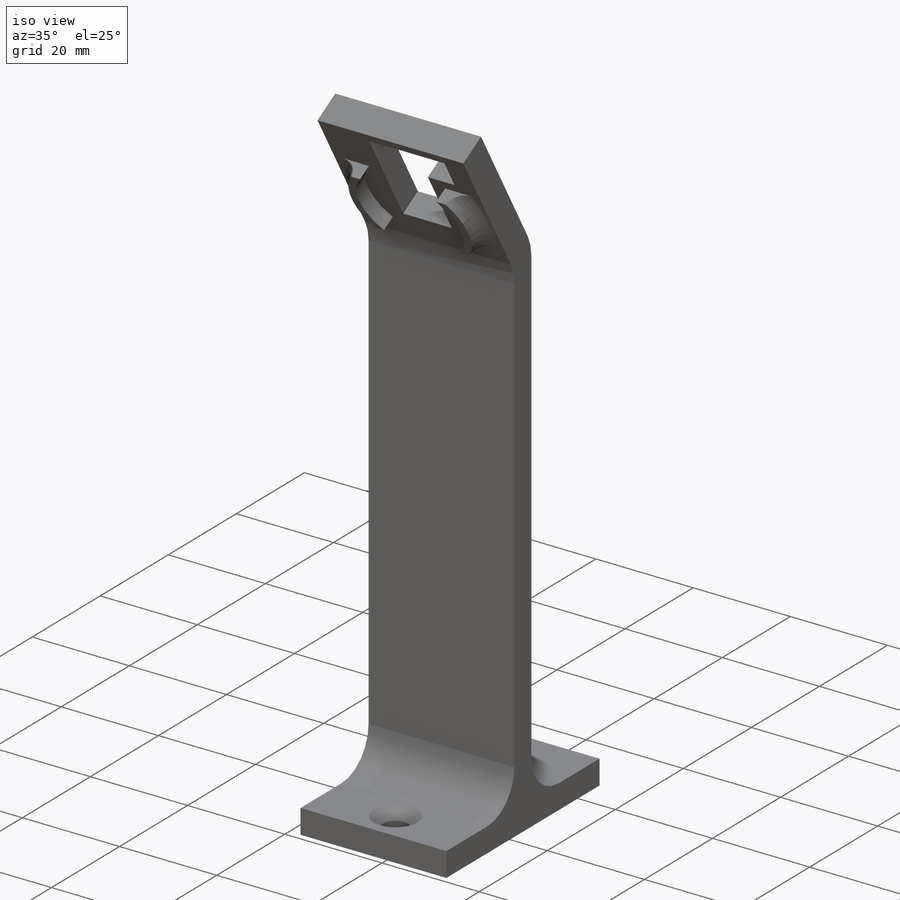
[diagram: iso view]
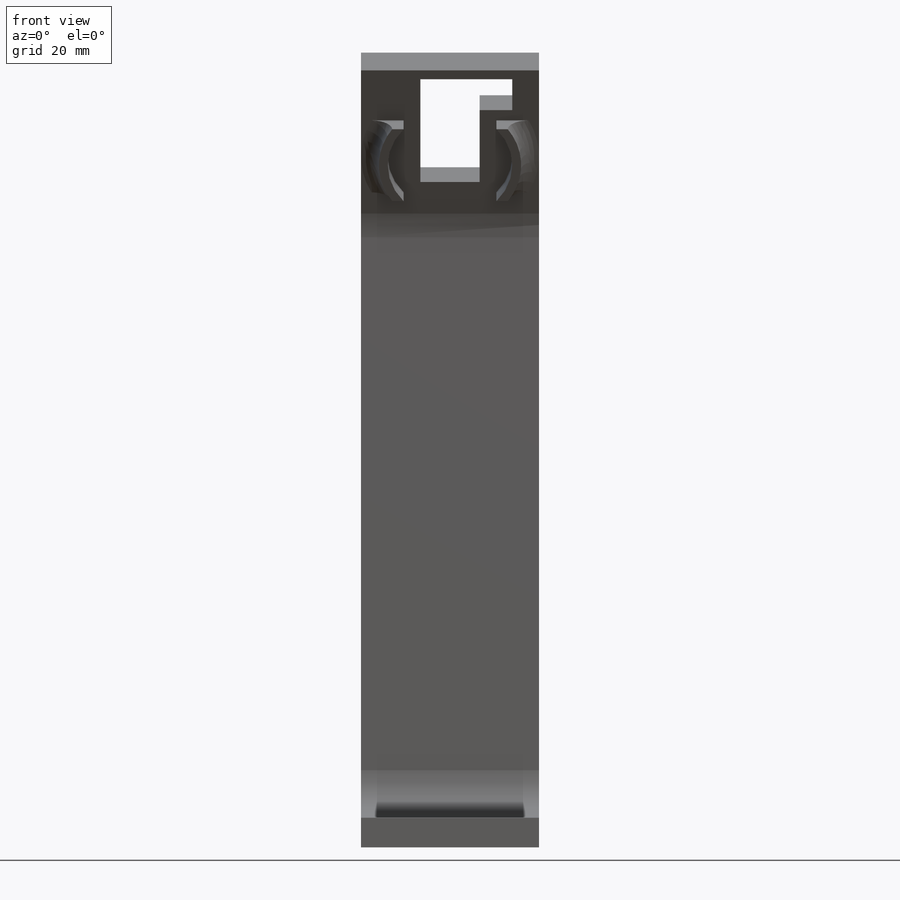
[diagram: front view]
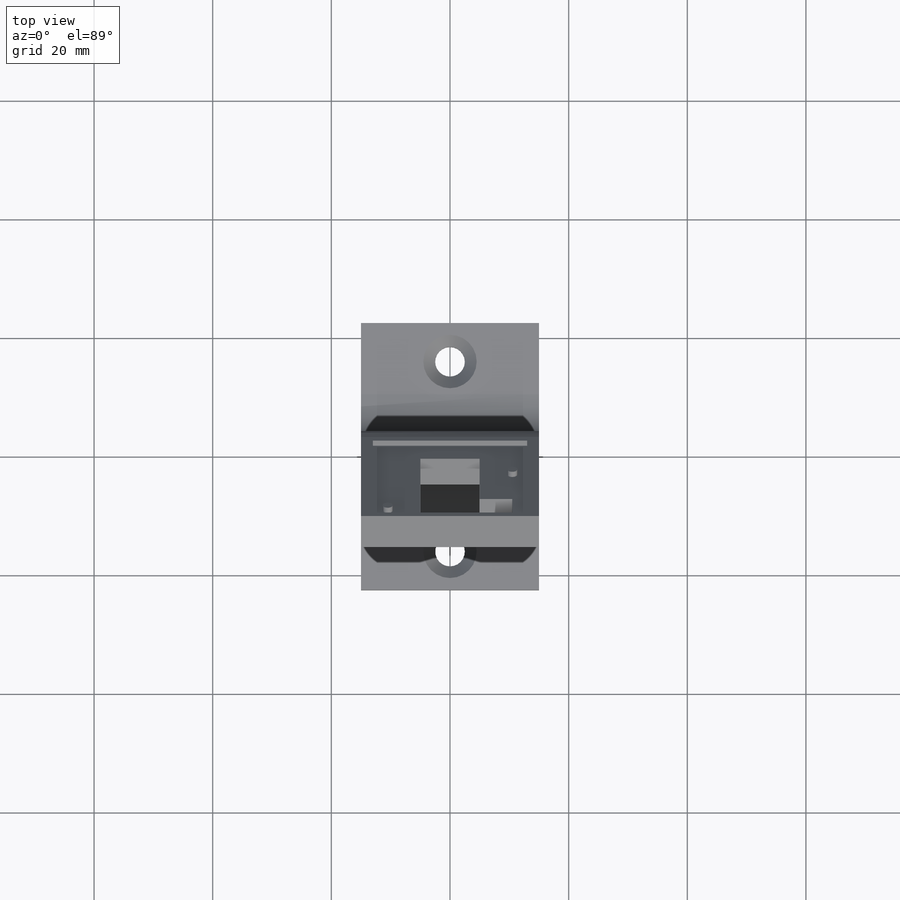
[diagram: top view]
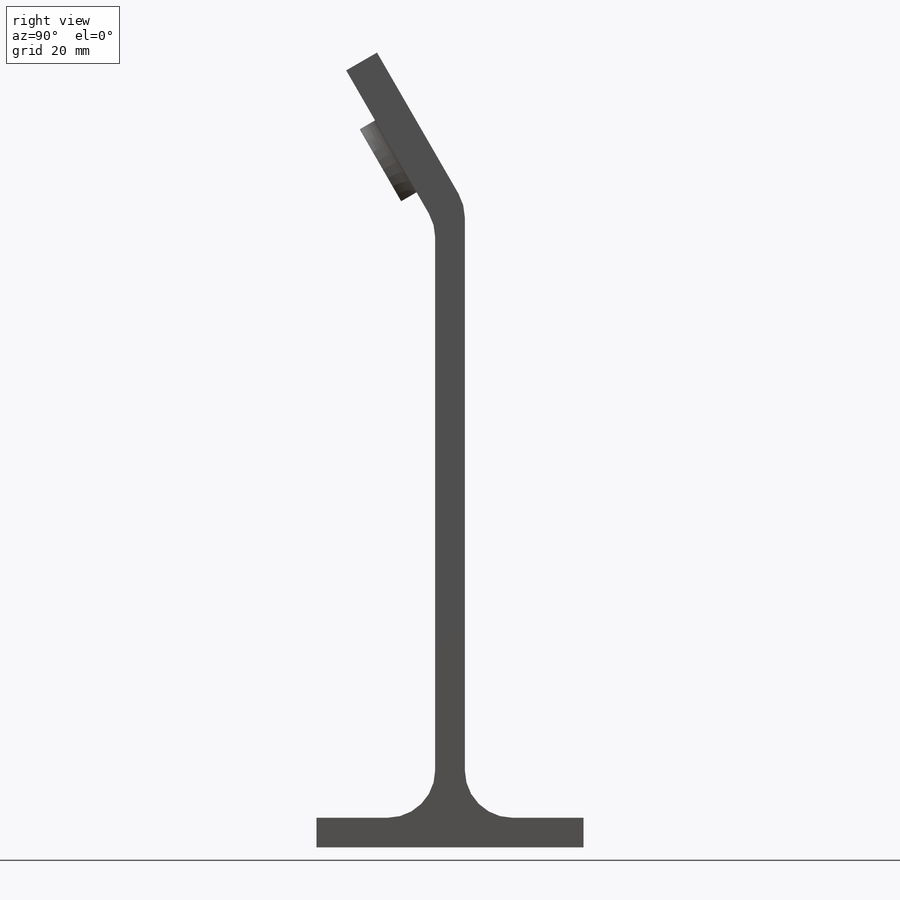
[diagram: right view]
SOLIDWORKS PART (.sldprt)
format: sldprt  version: not decoded by parser v0  size: 303,104 bytes
history: native  units: mm
features: sketch x8, extrude x5, cut_extrude x3, fillet x2, material x1, chamfer x1 (+13 scaffold rows collapsed)
feature tree (33):
  scaffold x13  (default folders/planes/origin — collapsed)
  material  "Material <not specified>"
  sketch  "Sketch1"  dims[D1=45.0mm D2=30.0mm]
  extrude  "Boss-Extrude1"  Depth=5mm
  sketch  "Sketch2"  dims[D1=5.0mm]
  extrude  "Boss-Extrude2"  Depth=100mm
  sketch  "Sketch3"  dims[c1.D1=6.0mm c1.D2=30.0mm c1.D3=~21.213203mm c2.D3=60.0deg]
  extrude  "Boss-Extrude3"  [1 undecoded]
  fillet  "Fillet1"  Radius=8mm
  sketch  "Sketch4"  dims[D2=5.0mm D1=32.0mm]
  cut_extrude  "Cut-Extrude1"  [1 undecoded]
  chamfer  "Chamfer1"  Distance=2mm Angle=45deg
  sketch  "Sketch5"  dims[D1=26.0mm D2=25.0mm]
  cut_extrude  "Cut-Extrude2"  Depth=1mm
  sketch  "Sketch8"  dims[D1=24.0mm D2=21.0mm D3=14.0mm D4=~33.047368mm]
  extrude  "Boss-Extrude5"  Depth=3mm
  sketch  "Sketch6"  dims[c1.D1=10.0mm c1.D2=20.0mm c1.D3=1.0mm c1.D4=1.0mm c1.D5=6.0mm c1.D6=5.5mm c1.D7=20.0mm c2.D4=1.0mm c2.D7=0.0mm]
  cut_extrude  "Cut-Extrude3"  [1 undecoded]
  sketch  "Sketch7"  dims[D1=0.2mm]
  extrude  "Boss-Extrude4"  Depth=1mm
  fillet  "Fillet2"  Radius=3mm
decode coverage: 16 of 19 modeling features carry decoded parameters
note: ~ marks probable driven/reference dimensions
note: 3 parameter values undecoded
summary: no parameter record found for 3 features
note: suppression state not decoded; provenance and decode notes live in map.json
